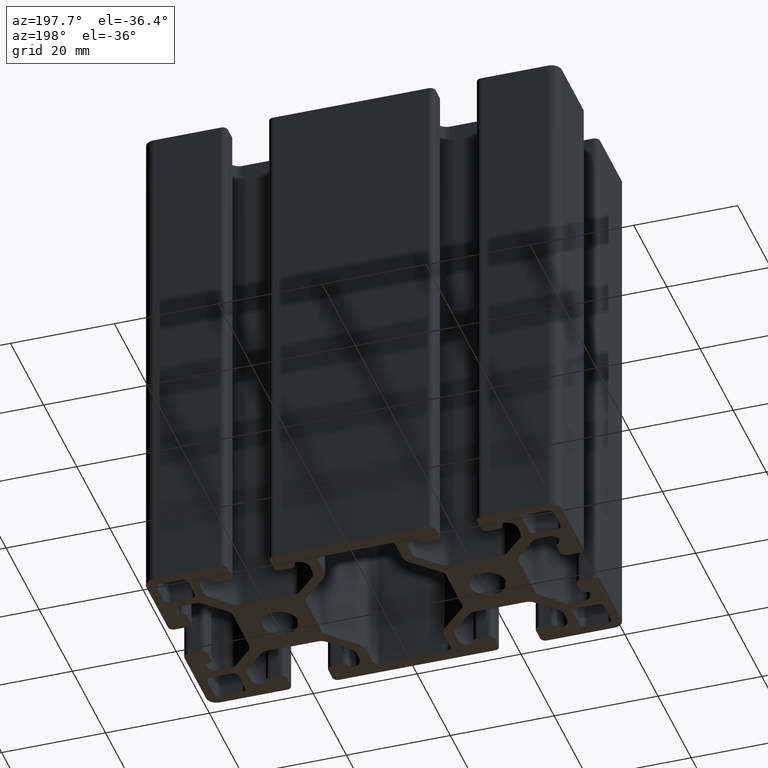
[diagram: clean part render]
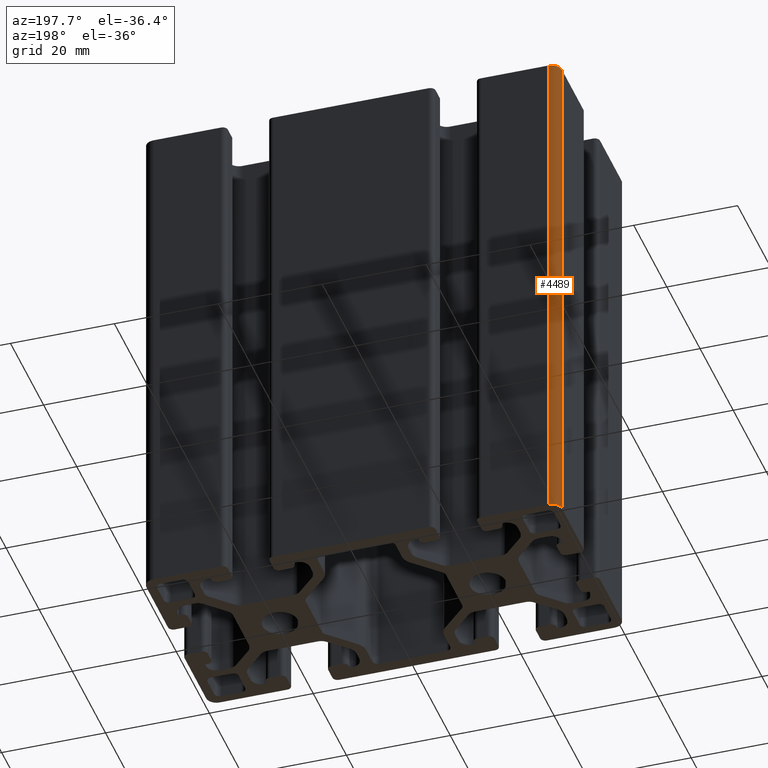
[diagram: same view with one face highlighted and labeled with its STEP entity id]
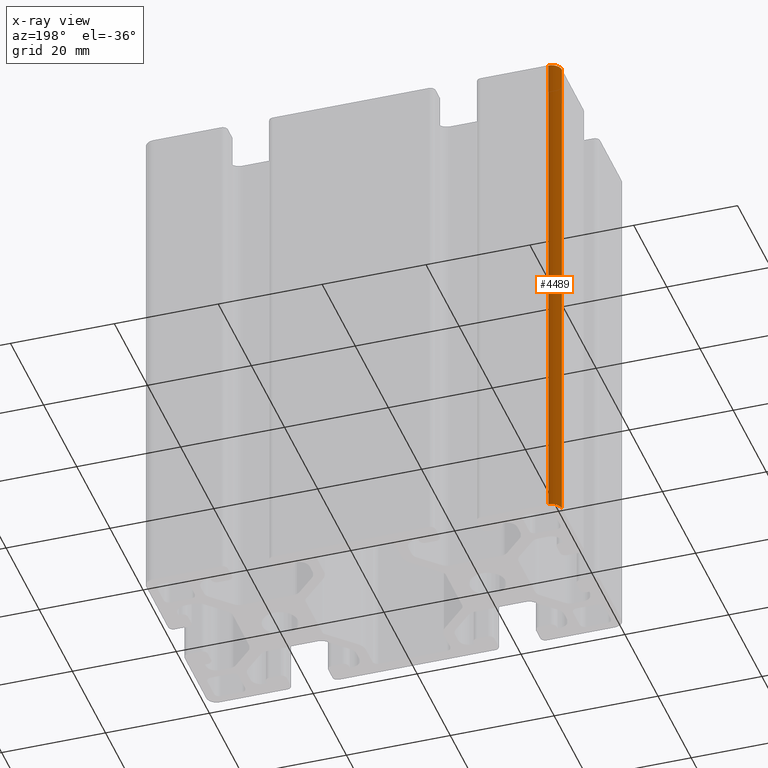
[diagram: x-ray of the same camera — body ghosted, the highlighted face saturated]
A machine part, auxiliary view. The second image highlights one B-rep face of the part: STEP entity #4489.
The next image is the same camera in x-ray: the body ghosted, the highlighted face saturated — about 0% of this face is hidden behind the body in this view.
In plain terms, the highlighted cylindrical surface (edge-blend (fillet) strip) has radius 2 mm, axis along (0, 0, 1).
Its self-contained STEP definition (entity closure, byte-faithful):
#564=LINE('',#7540,#1016);
#570=LINE('',#7552,#1022);
#1016=VECTOR('',#6196,100.);
#1022=VECTOR('',#6206,100.);
#1271=FACE_OUTER_BOUND('',#1504,.T.);
#1504=EDGE_LOOP('',(#3923,#3924,#3925,#3926));
#1722=CIRCLE('',#4919,2.);
#1726=CIRCLE('',#4925,2.);
#2161=VERTEX_POINT('',#7537);
#2162=VERTEX_POINT('',#7539);
#2165=VERTEX_POINT('',#7549);
#2166=VERTEX_POINT('',#7551);
#2808=EDGE_CURVE('',#2162,#2161,#564,.T.);
#2814=EDGE_CURVE('',#2165,#2166,#570,.T.);
#2826=EDGE_CURVE('',#2161,#2166,#1722,.T.);
#2831=EDGE_CURVE('',#2162,#2165,#1726,.T.);
#3923=ORIENTED_EDGE('',*,*,#2826,.T.);
#3924=ORIENTED_EDGE('',*,*,#2814,.F.);
#3925=ORIENTED_EDGE('',*,*,#2831,.F.);
#3926=ORIENTED_EDGE('',*,*,#2808,.T.);
#4268=CYLINDRICAL_SURFACE('',#4924,2.);
#4489=ADVANCED_FACE('',(#1271),#4268,.T.);
#4919=AXIS2_PLACEMENT_3D('',#7572,#6227,#6228);
#4924=AXIS2_PLACEMENT_3D('',#7579,#6238,#6239);
#4925=AXIS2_PLACEMENT_3D('',#7580,#6240,#6241);
#6196=DIRECTION('',(0.,0.,1.));
#6206=DIRECTION('',(0.,0.,1.));
#6227=DIRECTION('center_axis',(0.,0.,-1.));
#6228=DIRECTION('ref_axis',(-2.22044604925031E-15,1.,0.));
#6238=DIRECTION('center_axis',(0.,0.,1.));
#6239=DIRECTION('ref_axis',(-2.22044604925031E-15,1.,0.));
#6240=DIRECTION('center_axis',(0.,0.,-1.));
#6241=DIRECTION('ref_axis',(-2.22044604925031E-15,1.,0.));
#7537=CARTESIAN_POINT('',(-40.,18.,100.));
#7539=CARTESIAN_POINT('',(-40.,18.,0.));
#7540=CARTESIAN_POINT('',(-40.,18.,0.));
#7549=CARTESIAN_POINT('',(-38.,20.,0.));
#7551=CARTESIAN_POINT('',(-38.,20.,100.));
#7552=CARTESIAN_POINT('',(-38.,20.,0.));
#7572=CARTESIAN_POINT('Origin',(-38.,18.,100.));
#7579=CARTESIAN_POINT('Origin',(-38.,18.,0.));
#7580=CARTESIAN_POINT('Origin',(-38.,18.,0.));